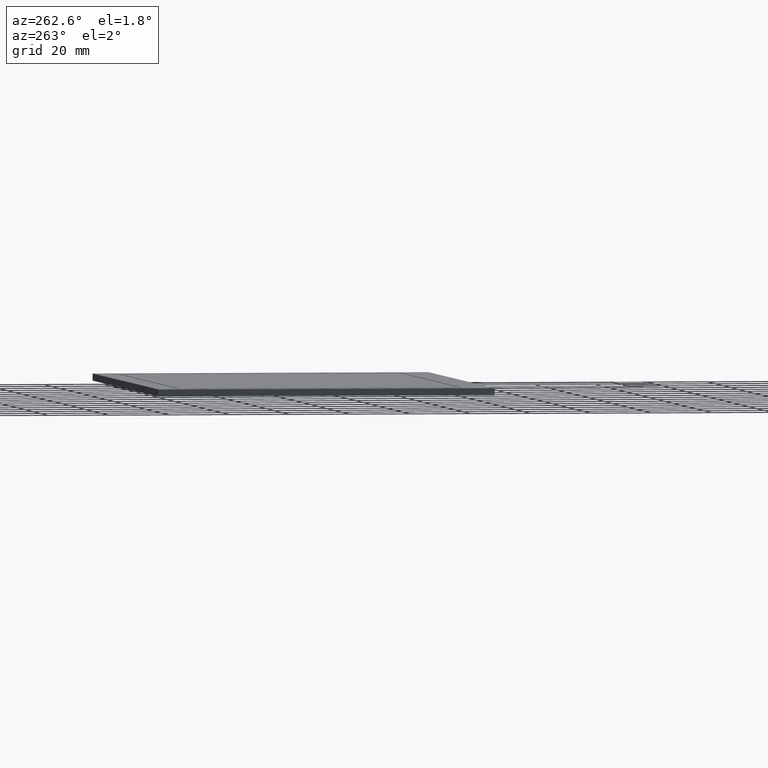
[diagram: clean part render]
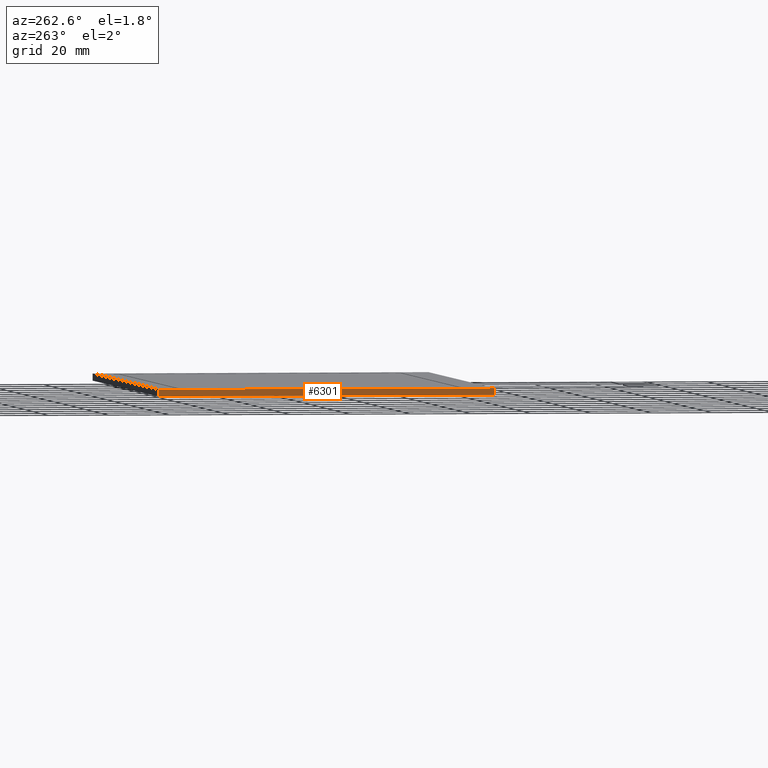
[diagram: same view with one face highlighted and labeled with its STEP entity id]
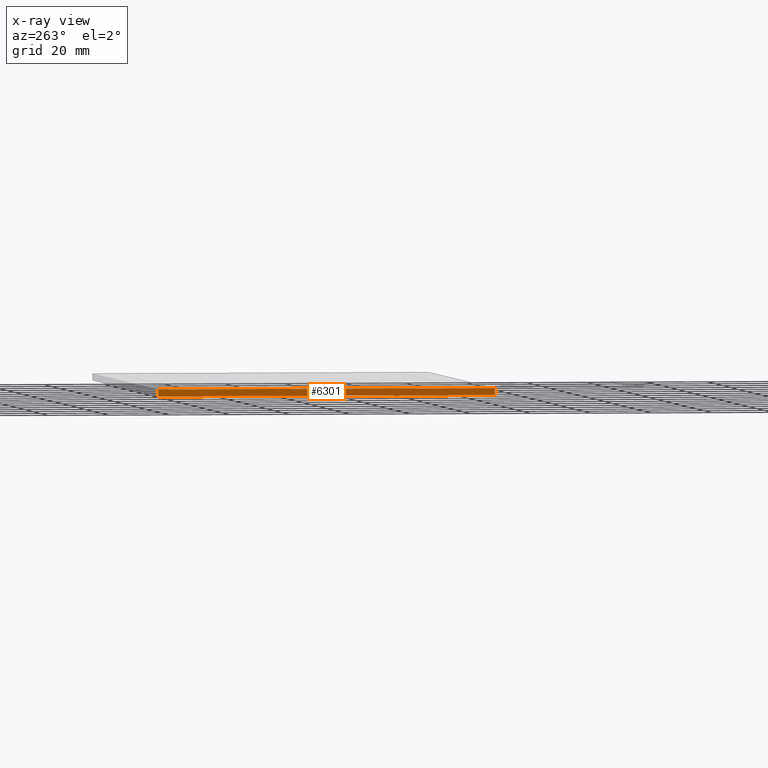
[diagram: x-ray of the same camera — body ghosted, the highlighted face saturated]
A machine part, auxiliary view. The second image highlights one B-rep face of the part: STEP entity #6301.
The next image is the same camera in x-ray: the body ghosted, the highlighted face saturated — about 0% of this face is hidden behind the body in this view.
In plain terms, the highlighted planar face has unit normal (-1, -0, 0).
Its self-contained STEP definition (entity closure, byte-faithful):
#363=PLANE('',#6631);
#665=FACE_OUTER_BOUND('',#969,.T.);
#969=EDGE_LOOP('',(#5969,#5970,#5971,#5972));
#1846=LINE('',#9900,#2726);
#1849=LINE('',#9906,#2729);
#1850=LINE('',#9908,#2730);
#1851=LINE('',#9909,#2731);
#2726=VECTOR('',#8116,10.);
#2729=VECTOR('',#8121,10.);
#2730=VECTOR('',#8122,10.);
#2731=VECTOR('',#8123,10.);
#3330=VERTEX_POINT('',#9897);
#3331=VERTEX_POINT('',#9899);
#3333=VERTEX_POINT('',#9905);
#3334=VERTEX_POINT('',#9907);
#4214=EDGE_CURVE('',#3330,#3331,#1846,.T.);
#4217=EDGE_CURVE('',#3330,#3333,#1849,.T.);
#4218=EDGE_CURVE('',#3334,#3333,#1850,.T.);
#4219=EDGE_CURVE('',#3331,#3334,#1851,.T.);
#5969=ORIENTED_EDGE('',*,*,#4214,.F.);
#5970=ORIENTED_EDGE('',*,*,#4217,.T.);
#5971=ORIENTED_EDGE('',*,*,#4218,.F.);
#5972=ORIENTED_EDGE('',*,*,#4219,.F.);
#6301=ADVANCED_FACE('',(#665),#363,.T.);
#6631=AXIS2_PLACEMENT_3D('',#9904,#8119,#8120);
#8116=DIRECTION('',(3.18915051956957E-16,-1.,0.));
#8119=DIRECTION('center_axis',(-1.,-3.18915051956957E-16,0.));
#8120=DIRECTION('ref_axis',(-3.18915051956957E-16,1.,0.));
#8121=DIRECTION('',(0.,0.,-1.));
#8122=DIRECTION('',(-3.18915051956957E-16,1.,0.));
#8123=DIRECTION('',(0.,0.,-1.));
#9897=CARTESIAN_POINT('',(-84.5,53.68,0.));
#9899=CARTESIAN_POINT('',(-84.5,-57.72,0.));
#9900=CARTESIAN_POINT('',(-84.5,53.68,0.));
#9904=CARTESIAN_POINT('Origin',(-84.5,-57.72,0.));
#9905=CARTESIAN_POINT('',(-84.5,53.68,-2.35));
#9906=CARTESIAN_POINT('',(-84.5,53.68,0.));
#9907=CARTESIAN_POINT('',(-84.5,-57.72,-2.35));
#9908=CARTESIAN_POINT('',(-84.5,53.68,-2.35));
#9909=CARTESIAN_POINT('',(-84.5,-57.72,0.));